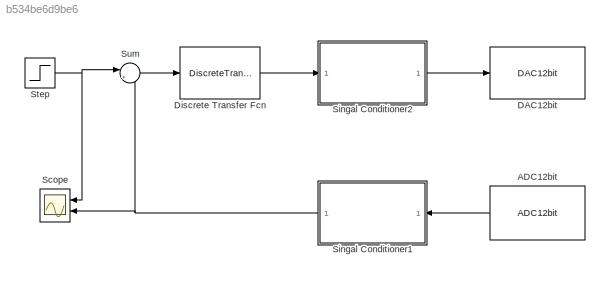
MODEL slx_b534be6d9be6
KIND model
CONFIG AbsTol = auto
CONFIG EnableMultiTasking = on
CONFIG FixedStep = auto
CONFIG MaxStep = auto
CONFIG MinStep = auto
CONFIG RelTol = 1e-3
CONFIG SampleTimeConstraint = Unconstrained
CONFIG Solver = VariableStepAuto
CONFIG SolverName = VariableStepAuto
CONFIG StartTime = 0.0
CONFIG StopTime = 50
BLOCK [Reference] ADC12bit  REF=EEE481Arduino/ADC12bit
  Ports = [0, 1]
  SourceBlock = EEE481Arduino/ADC12bit
  SourceProductName = EEE 481 Arduino
BLOCK [Reference] DAC12bit  REF=EEE481Arduino/DAC12bit
  Ports = [1]
  SourceBlock = EEE481Arduino/DAC12bit
  SourceProductName = EEE 481 Arduino
BLOCK [DiscreteTransferFcn] Discrete Transfer Fcn
  Denominator = [1 -1 0]
  InputPortMap = u0
  Numerator = [36680 -71510 34850]
  Ports = [1, 1]
BLOCK [Scope] Scope
  Floating = off
  NumInputPorts = 2
  Ports = [2]
  ScopeSpecificationString = Simulink.scopes.TimeScopeBlockCfg('CurrentConfiguration', extmgr.ConfigurationSet(extmgr.Configuration('Core','General UI',true),extmgr.Configuration('Core','Source UI',true),extmgr.Configuration('Sources','WiredSimulink',true),extmgr.Configuration('Visuals','Time Domain',true),extmgr.Configuration('Tools','Plot Navigation',true),extmgr.Configuration('Tools','Measurements',true)),'Version','2018a'...<+1ch>
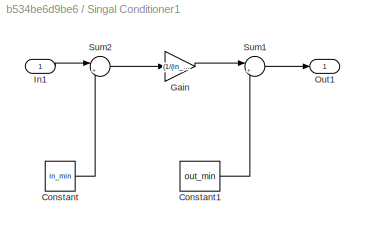
BLOCK [SubSystem] Singal Conditioner1
  Ports = [1, 1]
  RequestExecContextInheritance = off
BLOCK [Constant] Singal Conditioner1/Constant
  Value = in_min
BLOCK [Constant] Singal Conditioner1/Constant1
  Value = out_min
BLOCK [Gain] Singal Conditioner1/Gain
  Gain = (1/(in_max-in_min))*(out_max-out_min)
  OutDataTypeStr = Inherit: Inherit via internal rule
  ParamDataTypeStr = Inherit: Inherit via internal rule
  SaturateOnIntegerOverflow = off
BLOCK [Inport] Singal Conditioner1/In1
  IconDisplay = Port number
BLOCK [Outport] Singal Conditioner1/Out1
  IconDisplay = Port number
BLOCK [Sum] Singal Conditioner1/Sum1
  IconShape = round
  InputSameDT = off
  Inputs = |++
  OutDataTypeStr = Inherit: Inherit via internal rule
  Ports = [2, 1]
  SaturateOnIntegerOverflow = off
BLOCK [Sum] Singal Conditioner1/Sum2
  IconShape = round
  InputSameDT = off
  Inputs = |+-
  OutDataTypeStr = Inherit: Inherit via internal rule
  Ports = [2, 1]
  SaturateOnIntegerOverflow = off
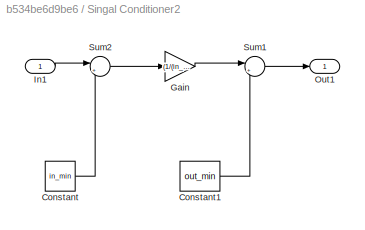
BLOCK [SubSystem] Singal Conditioner2
  Ports = [1, 1]
  RequestExecContextInheritance = off
BLOCK [Constant] Singal Conditioner2/Constant
  Value = in_min
BLOCK [Constant] Singal Conditioner2/Constant1
  Value = out_min
BLOCK [Gain] Singal Conditioner2/Gain
  Gain = (1/(in_max-in_min))*(out_max-out_min)
  OutDataTypeStr = Inherit: Inherit via internal rule
  ParamDataTypeStr = Inherit: Inherit via internal rule
  SaturateOnIntegerOverflow = off
BLOCK [Inport] Singal Conditioner2/In1
  IconDisplay = Port number
BLOCK [Outport] Singal Conditioner2/Out1
  IconDisplay = Port number
BLOCK [Sum] Singal Conditioner2/Sum1
  IconShape = round
  InputSameDT = off
  Inputs = |++
  OutDataTypeStr = Inherit: Inherit via internal rule
  Ports = [2, 1]
  SaturateOnIntegerOverflow = off
BLOCK [Sum] Singal Conditioner2/Sum2
  IconShape = round
  InputSameDT = off
  Inputs = |+-
  OutDataTypeStr = Inherit: Inherit via internal rule
  Ports = [2, 1]
  SaturateOnIntegerOverflow = off
BLOCK [Step] Step
  After = pi/6
  SampleTime = Ts
  Time = 25
BLOCK [Sum] Sum
  IconShape = round
  InputSameDT = off
  Inputs = |+-
  OutDataTypeStr = Inherit: Inherit via internal rule
  Ports = [2, 1]
  SaturateOnIntegerOverflow = off
LINE ADC12bit:1 -> Singal Conditioner1:1
LINE Discrete Transfer Fcn:1 -> Singal Conditioner2:1
LINE Singal Conditioner1/Constant1:1 -> Singal Conditioner1/Sum1:2
LINE Singal Conditioner1/Constant:1 -> Singal Conditioner1/Sum2:2
LINE Singal Conditioner1/Gain:1 -> Singal Conditioner1/Sum1:1
LINE Singal Conditioner1/In1:1 -> Singal Conditioner1/Sum2:1
LINE Singal Conditioner1/Sum1:1 -> Singal Conditioner1/Out1:1
LINE Singal Conditioner1/Sum2:1 -> Singal Conditioner1/Gain:1
NET Singal Conditioner1:1 -> Scope:2, Sum:2
LINE Singal Conditioner2/Constant1:1 -> Singal Conditioner2/Sum1:2
LINE Singal Conditioner2/Constant:1 -> Singal Conditioner2/Sum2:2
LINE Singal Conditioner2/Gain:1 -> Singal Conditioner2/Sum1:1
LINE Singal Conditioner2/In1:1 -> Singal Conditioner2/Sum2:1
LINE Singal Conditioner2/Sum1:1 -> Singal Conditioner2/Out1:1
LINE Singal Conditioner2/Sum2:1 -> Singal Conditioner2/Gain:1
LINE Singal Conditioner2:1 -> DAC12bit:1
NET Step:1 -> Scope:1, Sum:1
LINE Sum:1 -> Discrete Transfer Fcn:1
note: NET lines group one-source signal fan-out (src -> all destinations, sorted); 1:1 wires keep LINE
